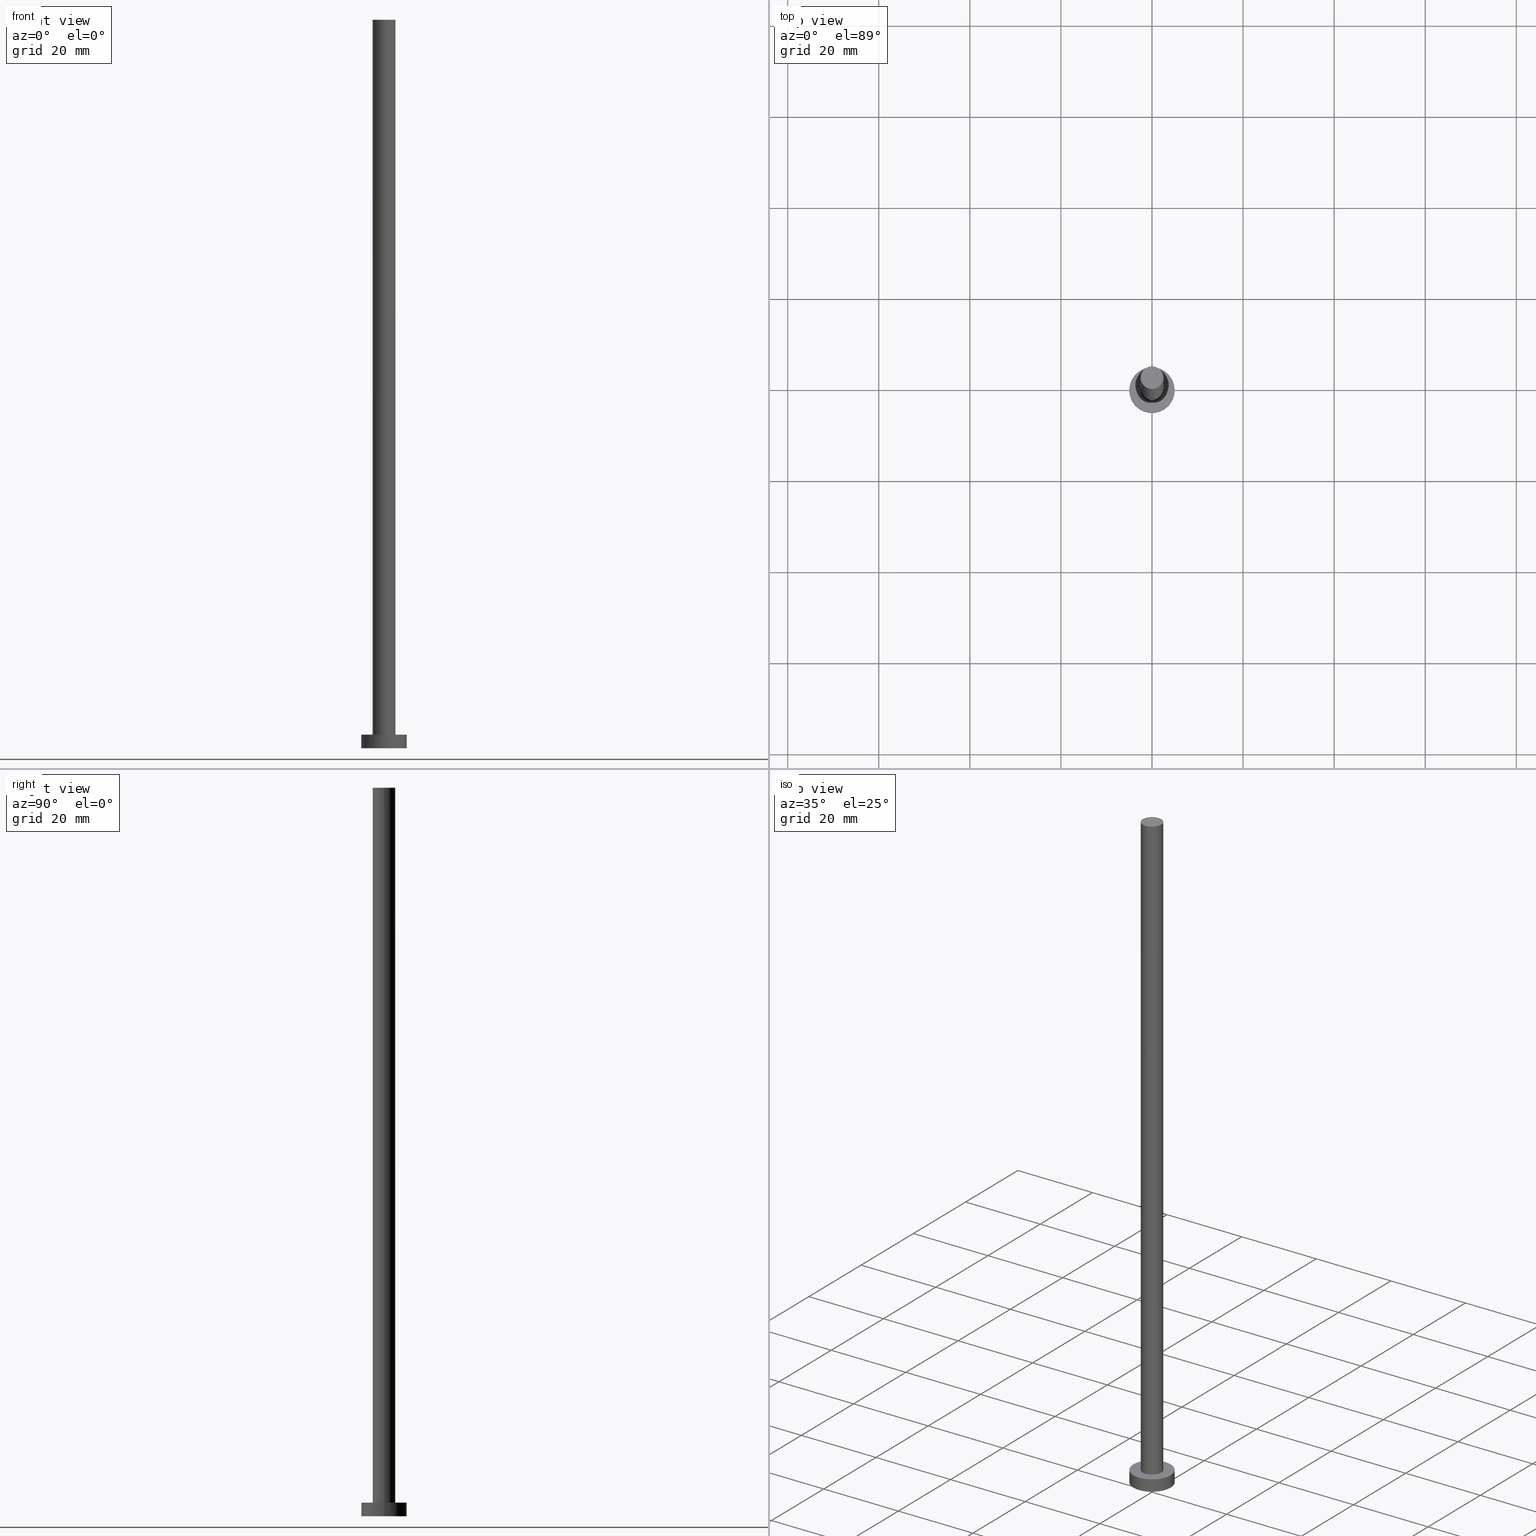
[diagram: canonical four-view strip — front | top / right | iso, engineering-drawing reading convention]
A machine part, canonical four-view strip (front | top / right | iso — engineering-drawing reading convention). The complete STEP part file that produces these views, byte-faithful:
ISO-10303-21;
HEADER;
FILE_DESCRIPTION (( 'STEP AP203' ),
    '1' );
FILE_NAME ('6db1.STEP',
    '2023-02-13T15:50:56',
    ( '' ),
    ( '' ),
    'SwSTEP 2.0',
    'SolidWorks 2019',
    '' );
FILE_SCHEMA (( 'CONFIG_CONTROL_DESIGN' ));
ENDSEC;

DATA;
#1 = ADVANCED_FACE ( 'NONE', ( #145 ), #148, .T. ) ;
#2 = SECURITY_CLASSIFICATION_LEVEL ( 'unclassified' ) ;
#3 = DIRECTION ( 'NONE',  ( 1.000000000000000000, 0.000000000000000000, 0.000000000000000000 ) ) ;
#4 = ORIENTED_EDGE ( 'NONE', *, *, #150, .T. ) ;
#5 = AXIS2_PLACEMENT_3D ( 'NONE', #60, #215, #173 ) ;
#6 = EDGE_LOOP ( 'NONE', ( #165, #186 ) ) ;
#7 = DIRECTION ( 'NONE',  ( 0.000000000000000000, 0.000000000000000000, 1.000000000000000000 ) ) ;
#8 = AXIS2_PLACEMENT_3D ( 'NONE', #92, #97, #37 ) ;
#9 = DIRECTION ( 'NONE',  ( 1.000000000000000000, 0.000000000000000000, -0.000000000000000000 ) ) ;
#10 = CC_DESIGN_SECURITY_CLASSIFICATION ( #106, ( #157 ) ) ;
#11 = CC_DESIGN_PERSON_AND_ORGANIZATION_ASSIGNMENT ( #214, #93, ( #157 ) ) ;
#12 = EDGE_LOOP ( 'NONE', ( #180, #68, #243, #72 ) ) ;
#13 = DATE_AND_TIME ( #107, #47 ) ;
#14 = CARTESIAN_POINT ( 'NONE',  ( 0.000000000000000000, 0.000000000000000000, 160.0000000000000000 ) ) ;
#15 = APPROVAL_PERSON_ORGANIZATION ( #223, #225, #246 ) ;
#16 = CARTESIAN_POINT ( 'NONE',  ( 0.000000000000000000, 0.000000000000000000, 160.0000000000000000 ) ) ;
#17 = EDGE_CURVE ( 'NONE', #139, #43, #86, .T. ) ;
#18 = APPROVAL_STATUS ( 'not_yet_approved' ) ;
#19 = CARTESIAN_POINT ( 'NONE',  ( -2.500000000000000000, 0.000000000000000000, 3.000000000000000000 ) ) ;
#20 = APPROVAL_STATUS ( 'not_yet_approved' ) ;
#21 = CARTESIAN_POINT ( 'NONE',  ( 5.000000000000000000, 6.123233995736766282E-16, 3.000000000000000000 ) ) ;
#22 = SHAPE_DEFINITION_REPRESENTATION ( #163, #191 ) ;
#23 = LINE ( 'NONE', #113, #88 ) ;
#24 = VERTEX_POINT ( 'NONE', #108 ) ;
#25 = DIRECTION ( 'NONE',  ( 1.000000000000000000, 0.000000000000000000, -0.000000000000000000 ) ) ;
#26 = APPLICATION_CONTEXT ( 'configuration controlled 3d designs of mechanical parts and assemblies' ) ;
#27 = COORDINATED_UNIVERSAL_TIME_OFFSET ( 1, 0, .AHEAD. ) ;
#28 = AXIS2_PLACEMENT_3D ( 'NONE', #16, #250, #76 ) ;
#29 = COORDINATED_UNIVERSAL_TIME_OFFSET ( 1, 0, .AHEAD. ) ;
#30 = CIRCLE ( 'NONE', #147, 2.500000000000000000 ) ;
#31 = VERTEX_POINT ( 'NONE', #249 ) ;
#32 = CALENDAR_DATE ( 2023, 13, 2 ) ;
#33 = ORIENTED_EDGE ( 'NONE', *, *, #59, .F. ) ;
#34 = CALENDAR_DATE ( 2023, 13, 2 ) ;
#35 = DIRECTION ( 'NONE',  ( -1.000000000000000000, 0.000000000000000000, 0.000000000000000000 ) ) ;
#36 = APPROVAL_PERSON_ORGANIZATION ( #41, #137, #176 ) ;
#37 = DIRECTION ( 'NONE',  ( -1.000000000000000000, 0.000000000000000000, 0.000000000000000000 ) ) ;
#38 = CARTESIAN_POINT ( 'NONE',  ( 2.500000000000000000, 3.061616997868383141E-16, 160.0000000000000000 ) ) ;
#39 = PRODUCT_RELATED_PRODUCT_CATEGORY ( 'detail', '', ( #49 ) ) ;
#40 = DIRECTION ( 'NONE',  ( -1.000000000000000000, 0.000000000000000000, 0.000000000000000000 ) ) ;
#41 = PERSON_AND_ORGANIZATION ( #209, #182 ) ;
#42 = CARTESIAN_POINT ( 'NONE',  ( 0.000000000000000000, 0.000000000000000000, 160.0000000000000000 ) ) ;
#43 = VERTEX_POINT ( 'NONE', #211 ) ;
#44 = APPLICATION_PROTOCOL_DEFINITION ( 'international standard', 'config_control_design', 1994, #166 ) ;
#45 = VECTOR ( 'NONE', #67, 1000.000000000000000 ) ;
#46 = APPROVAL_DATE_TIME ( #50, #225 ) ;
#47 = LOCAL_TIME ( 16, 50, 56.00000000000000000, #114 ) ;
#48 = DIRECTION ( 'NONE',  ( 0.000000000000000000, 0.000000000000000000, 1.000000000000000000 ) ) ;
#49 = PRODUCT ( '6db1', '6db1', '', ( #119 ) ) ;
#50 = DATE_AND_TIME ( #143, #100 ) ;
#51 = CIRCLE ( 'NONE', #237, 5.000000000000000000 ) ;
#52 = EDGE_LOOP ( 'NONE', ( #123, #96 ) ) ;
#53 = PERSON_AND_ORGANIZATION_ROLE ( 'creator' ) ;
#54 = CC_DESIGN_PERSON_AND_ORGANIZATION_ASSIGNMENT ( #202, #71, ( #49 ) ) ;
#55 = ADVANCED_FACE ( 'NONE', ( #74 ), #192, .T. ) ;
#56 = DIRECTION ( 'NONE',  ( -0.000000000000000000, -0.000000000000000000, -1.000000000000000000 ) ) ;
#57 = PERSON_AND_ORGANIZATION ( #209, #182 ) ;
#58 = DIRECTION ( 'NONE',  ( 0.000000000000000000, 0.000000000000000000, 1.000000000000000000 ) ) ;
#59 = EDGE_CURVE ( 'NONE', #43, #104, #151, .T. ) ;
#60 = CARTESIAN_POINT ( 'NONE',  ( 0.000000000000000000, 0.000000000000000000, 3.000000000000000000 ) ) ;
#61 = DIRECTION ( 'NONE',  ( -0.000000000000000000, -0.000000000000000000, -1.000000000000000000 ) ) ;
#62 = CIRCLE ( 'NONE', #5, 2.500000000000000000 ) ;
#63 = ORIENTED_EDGE ( 'NONE', *, *, #181, .T. ) ;
#64 = ADVANCED_FACE ( 'NONE', ( #132 ), #158, .F. ) ;
#65 = CARTESIAN_POINT ( 'NONE',  ( 0.000000000000000000, 0.000000000000000000, 0.000000000000000000 ) ) ;
#66 = ORIENTED_EDGE ( 'NONE', *, *, #117, .F. ) ;
#67 = DIRECTION ( 'NONE',  ( -0.000000000000000000, -0.000000000000000000, -1.000000000000000000 ) ) ;
#68 = ORIENTED_EDGE ( 'NONE', *, *, #141, .T. ) ;
#69 = LOCAL_TIME ( 16, 50, 56.00000000000000000, #169 ) ;
#70 = CARTESIAN_POINT ( 'NONE',  ( 0.000000000000000000, 0.000000000000000000, 0.000000000000000000 ) ) ;
#71 = PERSON_AND_ORGANIZATION_ROLE ( 'design_owner' ) ;
#72 = ORIENTED_EDGE ( 'NONE', *, *, #85, .F. ) ;
#73 = AXIS2_PLACEMENT_3D ( 'NONE', #153, #99, #134 ) ;
#74 = FACE_OUTER_BOUND ( 'NONE', #105, .T. ) ;
#75 = DIRECTION ( 'NONE',  ( 0.000000000000000000, 0.000000000000000000, 1.000000000000000000 ) ) ;
#76 = DIRECTION ( 'NONE',  ( -1.000000000000000000, 0.000000000000000000, 0.000000000000000000 ) ) ;
#77 = PERSON_AND_ORGANIZATION ( #209, #182 ) ;
#78 = DIRECTION ( 'NONE',  ( 1.000000000000000000, 0.000000000000000000, 0.000000000000000000 ) ) ;
#79 = CARTESIAN_POINT ( 'NONE',  ( 0.000000000000000000, 0.000000000000000000, 0.000000000000000000 ) ) ;
#80 = AXIS2_PLACEMENT_3D ( 'NONE', #65, #221, #25 ) ;
#81 = APPROVAL_DATE_TIME ( #174, #137 ) ;
#82 = DIRECTION ( 'NONE',  ( 0.000000000000000000, 0.000000000000000000, 1.000000000000000000 ) ) ;
#83 = DIRECTION ( 'NONE',  ( 0.000000000000000000, 0.000000000000000000, 1.000000000000000000 ) ) ;
#84 = ORIENTED_EDGE ( 'NONE', *, *, #125, .F. ) ;
#85 = EDGE_CURVE ( 'NONE', #118, #31, #159, .T. ) ;
#86 = CIRCLE ( 'NONE', #102, 2.500000000000000000 ) ;
#87 = ADVANCED_FACE ( 'NONE', ( #142, #103 ), #183, .T. ) ;
#88 = VECTOR ( 'NONE', #170, 1000.000000000000000 ) ;
#89 = CARTESIAN_POINT ( 'NONE',  ( 0.000000000000000000, 0.000000000000000000, 3.000000000000000000 ) ) ;
#90 = ORIENTED_EDGE ( 'NONE', *, *, #181, .F. ) ;
#91 = EDGE_CURVE ( 'NONE', #31, #171, #94, .T. ) ;
#92 = CARTESIAN_POINT ( 'NONE',  ( 0.000000000000000000, 0.000000000000000000, 3.000000000000000000 ) ) ;
#93 = PERSON_AND_ORGANIZATION_ROLE ( 'design_supplier' ) ;
#94 = CIRCLE ( 'NONE', #160, 5.000000000000000000 ) ;
#95 =( NAMED_UNIT ( * ) SI_UNIT ( $, .STERADIAN. ) SOLID_ANGLE_UNIT ( ) );
#96 = ORIENTED_EDGE ( 'NONE', *, *, #17, .T. ) ;
#97 = DIRECTION ( 'NONE',  ( -0.000000000000000000, -0.000000000000000000, -1.000000000000000000 ) ) ;
#98 = DATE_AND_TIME ( #32, #222 ) ;
#99 = DIRECTION ( 'NONE',  ( 0.000000000000000000, 0.000000000000000000, 1.000000000000000000 ) ) ;
#100 = LOCAL_TIME ( 16, 50, 56.00000000000000000, #27 ) ;
#101 = ADVANCED_FACE ( 'NONE', ( #127 ), #129, .T. ) ;
#102 = AXIS2_PLACEMENT_3D ( 'NONE', #175, #131, #167 ) ;
#103 = FACE_OUTER_BOUND ( 'NONE', #210, .T. ) ;
#104 = VERTEX_POINT ( 'NONE', #19 ) ;
#105 = EDGE_LOOP ( 'NONE', ( #121, #4, #198, #33 ) ) ;
#106 = SECURITY_CLASSIFICATION ( '', '', #2 ) ;
#107 = CALENDAR_DATE ( 2023, 13, 2 ) ;
#108 = CARTESIAN_POINT ( 'NONE',  ( 2.500000000000000000, 3.061616997868383141E-16, 3.000000000000000000 ) ) ;
#109 = LOCAL_TIME ( 16, 50, 56.00000000000000000, #216 ) ;
#110 =( NAMED_UNIT ( * ) PLANE_ANGLE_UNIT ( ) SI_UNIT ( $, .RADIAN. ) );
#111 = DIRECTION ( 'NONE',  ( 1.000000000000000000, 0.000000000000000000, 0.000000000000000000 ) ) ;
#112 = ORIENTED_EDGE ( 'NONE', *, *, #161, .T. ) ;
#113 = CARTESIAN_POINT ( 'NONE',  ( 5.000000000000000000, 6.123233995736766282E-16, 3.000000000000000000 ) ) ;
#114 = COORDINATED_UNIVERSAL_TIME_OFFSET ( 1, 0, .AHEAD. ) ;
#115 = CARTESIAN_POINT ( 'NONE',  ( 0.000000000000000000, 0.000000000000000000, 160.0000000000000000 ) ) ;
#116 = VECTOR ( 'NONE', #217, 1000.000000000000000 ) ;
#117 = EDGE_CURVE ( 'NONE', #104, #24, #248, .T. ) ;
#118 = VERTEX_POINT ( 'NONE', #177 ) ;
#119 = MECHANICAL_CONTEXT ( 'NONE', #166, 'mechanical' ) ;
#120 = AXIS2_PLACEMENT_3D ( 'NONE', #164, #48, #9 ) ;
#121 = ORIENTED_EDGE ( 'NONE', *, *, #17, .F. ) ;
#122 = UNCERTAINTY_MEASURE_WITH_UNIT (LENGTH_MEASURE( 1.000000000000000082E-05 ), #156, 'distance_accuracy_value', 'NONE');
#123 = ORIENTED_EDGE ( 'NONE', *, *, #124, .T. ) ;
#124 = EDGE_CURVE ( 'NONE', #43, #139, #30, .T. ) ;
#125 = EDGE_CURVE ( 'NONE', #24, #104, #62, .T. ) ;
#126 = PERSON_AND_ORGANIZATION ( #209, #182 ) ;
#127 = FACE_OUTER_BOUND ( 'NONE', #12, .T. ) ;
#128 = EDGE_CURVE ( 'NONE', #171, #31, #206, .T. ) ;
#129 = CYLINDRICAL_SURFACE ( 'NONE', #168, 5.000000000000000000 ) ;
#130 = EDGE_LOOP ( 'NONE', ( #245, #90, #247, #178 ) ) ;
#131 = DIRECTION ( 'NONE',  ( 0.000000000000000000, 0.000000000000000000, 1.000000000000000000 ) ) ;
#132 = FACE_OUTER_BOUND ( 'NONE', #6, .T. ) ;
#133 = CC_DESIGN_APPROVAL ( #225, ( #228 ) ) ;
#134 = DIRECTION ( 'NONE',  ( 1.000000000000000000, 0.000000000000000000, 0.000000000000000000 ) ) ;
#135 = CC_DESIGN_DATE_AND_TIME_ASSIGNMENT ( #98, #231, ( #228 ) ) ;
#136 = PLANE ( 'NONE',  #196 ) ;
#137 = APPROVAL ( #20, 'NEUR�EN�' ) ;
#138 = ORIENTED_EDGE ( 'NONE', *, *, #124, .F. ) ;
#139 = VERTEX_POINT ( 'NONE', #38 ) ;
#140 = AXIS2_PLACEMENT_3D ( 'NONE', #251, #82, #3 ) ;
#141 = EDGE_CURVE ( 'NONE', #194, #171, #23, .T. ) ;
#142 = FACE_BOUND ( 'NONE', #244, .T. ) ;
#143 = CALENDAR_DATE ( 2023, 13, 2 ) ;
#144 = AXIS2_PLACEMENT_3D ( 'NONE', #42, #61, #40 ) ;
#145 = FACE_OUTER_BOUND ( 'NONE', #130, .T. ) ;
#146 = MANIFOLD_SOLID_BREP ( 'P�idat vysunut�m3', #200 ) ;
#147 = AXIS2_PLACEMENT_3D ( 'NONE', #14, #83, #155 ) ;
#148 = CYLINDRICAL_SURFACE ( 'NONE', #8, 5.000000000000000000 ) ;
#149 = CYLINDRICAL_SURFACE ( 'NONE', #144, 2.500000000000000000 ) ;
#150 = EDGE_CURVE ( 'NONE', #139, #24, #213, .T. ) ;
#151 = LINE ( 'NONE', #230, #203 ) ;
#152 = DATE_TIME_ROLE ( 'classification_date' ) ;
#153 = CARTESIAN_POINT ( 'NONE',  ( 0.000000000000000000, 0.000000000000000000, 3.000000000000000000 ) ) ;
#154 = APPROVAL_ROLE ( '' ) ;
#155 = DIRECTION ( 'NONE',  ( 1.000000000000000000, 0.000000000000000000, 0.000000000000000000 ) ) ;
#156 =( LENGTH_UNIT ( ) NAMED_UNIT ( * ) SI_UNIT ( .MILLI., .METRE. ) );
#157 = PRODUCT_DEFINITION_FORMATION_WITH_SPECIFIED_SOURCE ( 'LIBOVOLN�', '', #49, .NOT_KNOWN. ) ;
#158 = PLANE ( 'NONE',  #80 ) ;
#159 = LINE ( 'NONE', #240, #45 ) ;
#160 = AXIS2_PLACEMENT_3D ( 'NONE', #70, #227, #226 ) ;
#161 = EDGE_CURVE ( 'NONE', #194, #118, #51, .T. ) ;
#162 = APPROVAL ( #18, 'NEUR�EN�' ) ;
#163 = PRODUCT_DEFINITION_SHAPE ( 'NONE', 'NONE',  #228 ) ;
#164 = CARTESIAN_POINT ( 'NONE',  ( 0.000000000000000000, 0.000000000000000000, 3.000000000000000000 ) ) ;
#165 = ORIENTED_EDGE ( 'NONE', *, *, #91, .F. ) ;
#166 = APPLICATION_CONTEXT ( 'configuration controlled 3d designs of mechanical parts and assemblies' ) ;
#167 = DIRECTION ( 'NONE',  ( 1.000000000000000000, 0.000000000000000000, 0.000000000000000000 ) ) ;
#168 = AXIS2_PLACEMENT_3D ( 'NONE', #89, #234, #35 ) ;
#169 = COORDINATED_UNIVERSAL_TIME_OFFSET ( 1, 0, .AHEAD. ) ;
#170 = DIRECTION ( 'NONE',  ( -0.000000000000000000, -0.000000000000000000, -1.000000000000000000 ) ) ;
#171 = VERTEX_POINT ( 'NONE', #235 ) ;
#172 = DATE_AND_TIME ( #195, #109 ) ;
#173 = DIRECTION ( 'NONE',  ( 1.000000000000000000, 0.000000000000000000, 0.000000000000000000 ) ) ;
#174 = DATE_AND_TIME ( #34, #69 ) ;
#175 = CARTESIAN_POINT ( 'NONE',  ( 0.000000000000000000, 0.000000000000000000, 160.0000000000000000 ) ) ;
#176 = APPROVAL_ROLE ( '' ) ;
#177 = CARTESIAN_POINT ( 'NONE',  ( -5.000000000000000000, 0.000000000000000000, 3.000000000000000000 ) ) ;
#178 = ORIENTED_EDGE ( 'NONE', *, *, #91, .T. ) ;
#179 = AXIS2_PLACEMENT_3D ( 'NONE', #79, #58, #111 ) ;
#180 = ORIENTED_EDGE ( 'NONE', *, *, #161, .F. ) ;
#181 = EDGE_CURVE ( 'NONE', #118, #194, #224, .T. ) ;
#182 = ORGANIZATION ( 'NEUR�EN�', 'NEUR�EN�', '' ) ;
#183 = PLANE ( 'NONE',  #120 ) ;
#184 = APPLICATION_PROTOCOL_DEFINITION ( 'international standard', 'config_control_design', 1994, #26 ) ;
#185 = CC_DESIGN_APPROVAL ( #137, ( #106 ) ) ;
#186 = ORIENTED_EDGE ( 'NONE', *, *, #128, .F. ) ;
#187 = ORIENTED_EDGE ( 'NONE', *, *, #59, .T. ) ;
#188 = ADVANCED_FACE ( 'NONE', ( #218 ), #149, .T. ) ;
#189 = APPROVAL_DATE_TIME ( #13, #162 ) ;
#190 = CARTESIAN_POINT ( 'NONE',  ( 2.500000000000000000, 3.061616997868383141E-16, 160.0000000000000000 ) ) ;
#191 = ADVANCED_BREP_SHAPE_REPRESENTATION ( '6db1', ( #146, #253 ), #233 ) ;
#192 = CYLINDRICAL_SURFACE ( 'NONE', #28, 2.500000000000000000 ) ;
#193 = CC_DESIGN_APPROVAL ( #162, ( #157 ) ) ;
#194 = VERTEX_POINT ( 'NONE', #21 ) ;
#195 = CALENDAR_DATE ( 2023, 13, 2 ) ;
#196 = AXIS2_PLACEMENT_3D ( 'NONE', #115, #229, #197 ) ;
#197 = DIRECTION ( 'NONE',  ( 1.000000000000000000, 0.000000000000000000, -0.000000000000000000 ) ) ;
#198 = ORIENTED_EDGE ( 'NONE', *, *, #125, .T. ) ;
#199 = CC_DESIGN_PERSON_AND_ORGANIZATION_ASSIGNMENT ( #254, #212, ( #106 ) ) ;
#200 = CLOSED_SHELL ( 'NONE', ( #55, #101, #1, #87, #64, #188, #208 ) ) ;
#201 = CC_DESIGN_PERSON_AND_ORGANIZATION_ASSIGNMENT ( #126, #204, ( #228 ) ) ;
#202 = PERSON_AND_ORGANIZATION ( #209, #182 ) ;
#203 = VECTOR ( 'NONE', #56, 1000.000000000000000 ) ;
#204 = PERSON_AND_ORGANIZATION_ROLE ( 'creator' ) ;
#205 = DESIGN_CONTEXT ( 'detailed design', #26, 'design' ) ;
#206 = CIRCLE ( 'NONE', #179, 5.000000000000000000 ) ;
#207 = EDGE_LOOP ( 'NONE', ( #219, #138, #187, #252 ) ) ;
#208 = ADVANCED_FACE ( 'NONE', ( #255 ), #136, .T. ) ;
#209 = PERSON ( 'NEUR�EN�', 'NEUR�EN�', 'NEUR�EN�', ('NEUR�EN�'), ('NEUR�EN�'), ('NEUR�EN�') ) ;
#210 = EDGE_LOOP ( 'NONE', ( #63, #112 ) ) ;
#211 = CARTESIAN_POINT ( 'NONE',  ( -2.500000000000000000, 0.000000000000000000, 160.0000000000000000 ) ) ;
#212 = PERSON_AND_ORGANIZATION_ROLE ( 'classification_officer' ) ;
#213 = LINE ( 'NONE', #190, #116 ) ;
#214 = PERSON_AND_ORGANIZATION ( #209, #182 ) ;
#215 = DIRECTION ( 'NONE',  ( 0.000000000000000000, 0.000000000000000000, 1.000000000000000000 ) ) ;
#216 = COORDINATED_UNIVERSAL_TIME_OFFSET ( 1, 0, .AHEAD. ) ;
#217 = DIRECTION ( 'NONE',  ( -0.000000000000000000, -0.000000000000000000, -1.000000000000000000 ) ) ;
#218 = FACE_OUTER_BOUND ( 'NONE', #207, .T. ) ;
#219 = ORIENTED_EDGE ( 'NONE', *, *, #150, .F. ) ;
#220 = DIRECTION ( 'NONE',  ( 1.000000000000000000, 0.000000000000000000, 0.000000000000000000 ) ) ;
#221 = DIRECTION ( 'NONE',  ( 0.000000000000000000, 0.000000000000000000, 1.000000000000000000 ) ) ;
#222 = LOCAL_TIME ( 16, 50, 56.00000000000000000, #29 ) ;
#223 = PERSON_AND_ORGANIZATION ( #209, #182 ) ;
#224 = CIRCLE ( 'NONE', #73, 5.000000000000000000 ) ;
#225 = APPROVAL ( #241, 'NEUR�EN�' ) ;
#226 = DIRECTION ( 'NONE',  ( 1.000000000000000000, 0.000000000000000000, 0.000000000000000000 ) ) ;
#227 = DIRECTION ( 'NONE',  ( 0.000000000000000000, 0.000000000000000000, 1.000000000000000000 ) ) ;
#228 = PRODUCT_DEFINITION ( 'NEZN�M�', '', #157, #205 ) ;
#229 = DIRECTION ( 'NONE',  ( 0.000000000000000000, 0.000000000000000000, 1.000000000000000000 ) ) ;
#230 = CARTESIAN_POINT ( 'NONE',  ( -2.500000000000000000, 0.000000000000000000, 160.0000000000000000 ) ) ;
#231 = DATE_TIME_ROLE ( 'creation_date' ) ;
#232 = CARTESIAN_POINT ( 'NONE',  ( 0.000000000000000000, 0.000000000000000000, 3.000000000000000000 ) ) ;
#233 =( GEOMETRIC_REPRESENTATION_CONTEXT ( 3 ) GLOBAL_UNCERTAINTY_ASSIGNED_CONTEXT ( ( #122 ) ) GLOBAL_UNIT_ASSIGNED_CONTEXT ( ( #156, #110, #95 ) ) REPRESENTATION_CONTEXT ( 'NONE', 'WORKASPACE' ) );
#234 = DIRECTION ( 'NONE',  ( -0.000000000000000000, -0.000000000000000000, -1.000000000000000000 ) ) ;
#235 = CARTESIAN_POINT ( 'NONE',  ( 5.000000000000000000, 6.123233995736766282E-16, 0.000000000000000000 ) ) ;
#236 = CC_DESIGN_DATE_AND_TIME_ASSIGNMENT ( #172, #152, ( #106 ) ) ;
#237 = AXIS2_PLACEMENT_3D ( 'NONE', #232, #75, #78 ) ;
#238 = CARTESIAN_POINT ( 'NONE',  ( 0.000000000000000000, 0.000000000000000000, 0.000000000000000000 ) ) ;
#239 = APPROVAL_PERSON_ORGANIZATION ( #57, #162, #154 ) ;
#240 = CARTESIAN_POINT ( 'NONE',  ( -5.000000000000000000, 0.000000000000000000, 3.000000000000000000 ) ) ;
#241 = APPROVAL_STATUS ( 'not_yet_approved' ) ;
#242 = CC_DESIGN_PERSON_AND_ORGANIZATION_ASSIGNMENT ( #77, #53, ( #157 ) ) ;
#243 = ORIENTED_EDGE ( 'NONE', *, *, #128, .T. ) ;
#244 = EDGE_LOOP ( 'NONE', ( #66, #84 ) ) ;
#245 = ORIENTED_EDGE ( 'NONE', *, *, #141, .F. ) ;
#246 = APPROVAL_ROLE ( '' ) ;
#247 = ORIENTED_EDGE ( 'NONE', *, *, #85, .T. ) ;
#248 = CIRCLE ( 'NONE', #140, 2.500000000000000000 ) ;
#249 = CARTESIAN_POINT ( 'NONE',  ( -5.000000000000000000, 0.000000000000000000, 0.000000000000000000 ) ) ;
#250 = DIRECTION ( 'NONE',  ( -0.000000000000000000, -0.000000000000000000, -1.000000000000000000 ) ) ;
#251 = CARTESIAN_POINT ( 'NONE',  ( 0.000000000000000000, 0.000000000000000000, 3.000000000000000000 ) ) ;
#252 = ORIENTED_EDGE ( 'NONE', *, *, #117, .T. ) ;
#253 = AXIS2_PLACEMENT_3D ( 'NONE', #238, #7, #220 ) ;
#254 = PERSON_AND_ORGANIZATION ( #209, #182 ) ;
#255 = FACE_OUTER_BOUND ( 'NONE', #52, .T. ) ;
ENDSEC;
END-ISO-10303-21;
